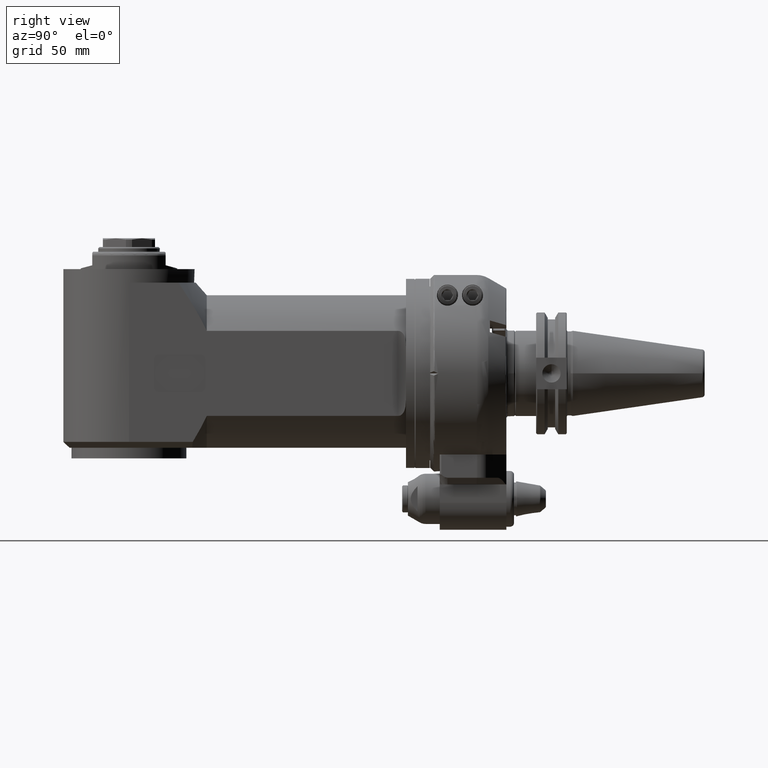
[diagram: clean part render]
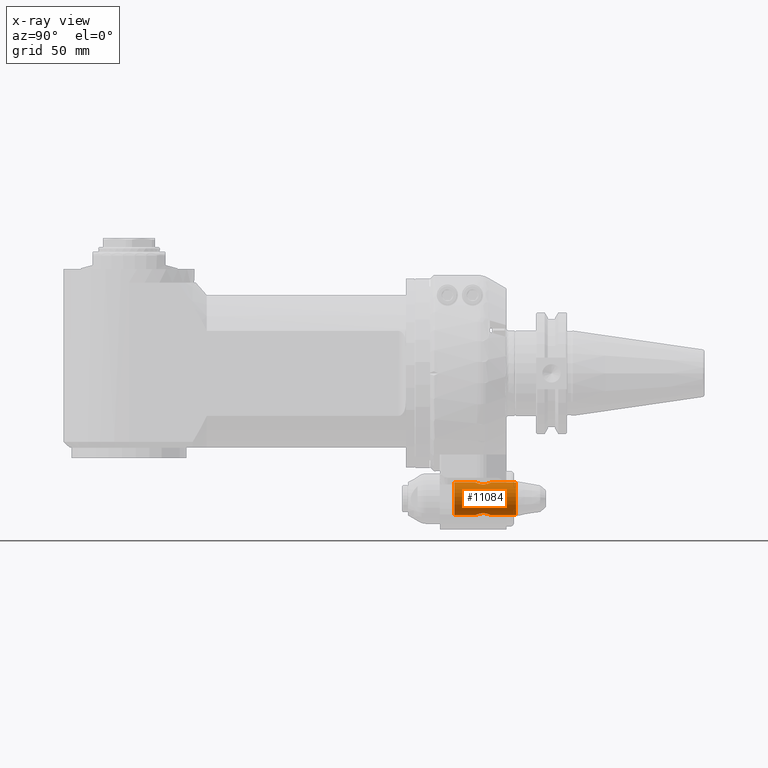
[diagram: x-ray — body ghosted, one internal face saturated and labeled with its STEP entity id]
A machine part, right view, then the same camera in x-ray: the body is ghosted and one INTERNAL B-rep face — a face not visible from any outside direction — is saturated and labeled: STEP entity #11084.
In plain terms, the highlighted cylindrical surface (bore or boss wall) has radius 8.5 mm, axis along (0, 1, 0).
Its self-contained STEP definition (entity closure, byte-faithful):
#393=FACE_BOUND('',#2374,.T.);
#596=B_SPLINE_CURVE_WITH_KNOTS('',3,(#19995,#19996,#19997,#19998,#19999,
#20000,#20001,#20002,#20003,#20004),.UNSPECIFIED.,.F.,.F.,(4,2,2,2,4),(0.613430912820706,
0.766629647538084,0.919828382255461,1.07334510394844,1.22686182564141),
 .UNSPECIFIED.);
#597=B_SPLINE_CURVE_WITH_KNOTS('',3,(#20006,#20007,#20008,#20009,#20010,
#20011,#20012,#20013,#20014,#20015),.UNSPECIFIED.,.F.,.F.,(4,2,2,2,4),(-1.22686182564141,
-1.07334510394844,-0.919828382255462,-0.766629647538084,-0.613430912820706),
 .UNSPECIFIED.);
#598=B_SPLINE_CURVE_WITH_KNOTS('',3,(#20017,#20018,#20019,#20020,#20021,
#20022,#20023,#20024,#20025,#20026,#20027,#20028,#20029,#20030,#20031,#20032,
#20033,#20034,#20035),.UNSPECIFIED.,.F.,.F.,(4,2,2,2,3,2,2,2,4),(-0.613430912820706,
-0.460232178103329,-0.307033443385951,-0.153516721692976,0.,0.153516721692975,
0.307033443385951,0.460232178103329,0.613430912820706),.UNSPECIFIED.);
#599=B_SPLINE_CURVE_WITH_KNOTS('',3,(#20037,#20038,#20039,#20040,#20041,
#20042,#20043,#20044,#20045,#20046,#20047,#20048,#20049,#20050,#20051,#20052,
#20053,#20054,#20055,#20056,#20057,#20058,#20059,#20060,#20061,#20062,#20063,
#20064,#20065,#20066,#20067,#20068,#20069,#20070),.UNSPECIFIED.,.T.,.F.,
(4,2,2,2,2,2,2,2,2,2,2,2,2,2,2,2,4),(-2.45372365128283,-2.30020692958985,
-2.14669020789687,-1.9934914731795,-1.84029273846212,-1.68709400374474,
-1.53389526902736,-1.38037854733439,-1.22686182564141,-1.07334510394844,
-0.919828382255461,-0.766629647538084,-0.613430912820706,-0.460232178103328,
-0.307033443385951,-0.153516721692975,0.),.UNSPECIFIED.);
#1062=CYLINDRICAL_SURFACE('',#12747,8.5);
#1618=FACE_OUTER_BOUND('',#2373,.T.);
#2373=EDGE_LOOP('',(#9711,#9712,#9713,#9714,#9715,#9716,#9717,#9718,#9719));
#2374=EDGE_LOOP('',(#9720));
#3086=CIRCLE('',#12746,8.5);
#3087=CIRCLE('',#12748,8.5);
#3785=LINE('',#19993,#4488);
#3786=LINE('',#20016,#4489);
#4488=VECTOR('',#15768,8.5);
#4489=VECTOR('',#15769,8.5);
#5441=VERTEX_POINT('',#19987);
#5442=VERTEX_POINT('',#19990);
#5443=VERTEX_POINT('',#19992);
#5444=VERTEX_POINT('',#19994);
#5445=VERTEX_POINT('',#20005);
#5446=VERTEX_POINT('',#20036);
#6903=EDGE_CURVE('',#5441,#5441,#3086,.T.);
#6904=EDGE_CURVE('',#5442,#5442,#3087,.T.);
#6905=EDGE_CURVE('',#5442,#5443,#3785,.T.);
#6906=EDGE_CURVE('',#5444,#5443,#596,.F.);
#6907=EDGE_CURVE('',#5445,#5444,#597,.F.);
#6908=EDGE_CURVE('',#5445,#5441,#3786,.T.);
#6909=EDGE_CURVE('',#5443,#5445,#598,.F.);
#6910=EDGE_CURVE('',#5446,#5446,#599,.F.);
#9711=ORIENTED_EDGE('',*,*,#6904,.F.);
#9712=ORIENTED_EDGE('',*,*,#6905,.T.);
#9713=ORIENTED_EDGE('',*,*,#6906,.F.);
#9714=ORIENTED_EDGE('',*,*,#6907,.F.);
#9715=ORIENTED_EDGE('',*,*,#6908,.T.);
#9716=ORIENTED_EDGE('',*,*,#6903,.F.);
#9717=ORIENTED_EDGE('',*,*,#6908,.F.);
#9718=ORIENTED_EDGE('',*,*,#6909,.F.);
#9719=ORIENTED_EDGE('',*,*,#6905,.F.);
#9720=ORIENTED_EDGE('',*,*,#6910,.F.);
#11084=ADVANCED_FACE('',(#1618,#393),#1062,.T.);
#12746=AXIS2_PLACEMENT_3D('',#19988,#15762,#15763);
#12747=AXIS2_PLACEMENT_3D('',#19989,#15764,#15765);
#12748=AXIS2_PLACEMENT_3D('',#19991,#15766,#15767);
#15762=DIRECTION('center_axis',(1.,0.,0.));
#15763=DIRECTION('ref_axis',(0.,1.,0.));
#15764=DIRECTION('center_axis',(-1.,0.,0.));
#15765=DIRECTION('ref_axis',(0.,1.,0.));
#15766=DIRECTION('center_axis',(-1.,0.,0.));
#15767=DIRECTION('ref_axis',(0.,-1.,0.));
#15768=DIRECTION('',(1.,0.,0.));
#15769=DIRECTION('',(1.,0.,0.));
#19987=CARTESIAN_POINT('',(-31.75,56.5,1.04094977927525E-15));
#19988=CARTESIAN_POINT('Origin',(-31.75,65.,0.));
#19989=CARTESIAN_POINT('Origin',(-16.2499976,65.,0.));
#19990=CARTESIAN_POINT('',(-63.75,56.5,1.04094977927525E-15));
#19991=CARTESIAN_POINT('Origin',(-63.75,65.,0.));
#19992=CARTESIAN_POINT('',(-50.75,56.5,5.89863828676697E-16));
#19993=CARTESIAN_POINT('',(-16.2499976,56.5,1.04094977927525E-15));
#19994=CARTESIAN_POINT('',(-46.75,57.5,4.));
#19995=CARTESIAN_POINT('Ctrl Pts',(-50.75,56.5,1.38777878078145E-16));
#19996=CARTESIAN_POINT('Ctrl Pts',(-50.75,56.5,0.510662449057925));
#19997=CARTESIAN_POINT('Ctrl Pts',(-50.6463150371533,56.550307430602,1.05009892728331));
#19998=CARTESIAN_POINT('Ctrl Pts',(-50.2355009215929,56.7317020547219,2.03353418176194));
#19999=CARTESIAN_POINT('Ctrl Pts',(-49.9287787722121,56.8607634394313,2.47807547728031));
#20000=CARTESIAN_POINT('Ctrl Pts',(-49.2273482698332,57.1082736246508,3.17950597965918));
#20001=CARTESIAN_POINT('Ctrl Pts',(-48.7830622122315,57.2442369519195,3.48568850685861));
#20002=CARTESIAN_POINT('Ctrl Pts',(-47.8006991349841,57.4420572899479,3.89607388117928));
#20003=CARTESIAN_POINT('Ctrl Pts',(-47.2617224056432,57.5,4.));
#20004=CARTESIAN_POINT('Ctrl Pts',(-46.75,57.5,4.));
#20005=CARTESIAN_POINT('',(-42.75,56.5,-1.73414500753098E-16));
#20006=CARTESIAN_POINT('Ctrl Pts',(-46.75,57.5,4.));
#20007=CARTESIAN_POINT('Ctrl Pts',(-46.2382775943568,57.5,4.));
#20008=CARTESIAN_POINT('Ctrl Pts',(-45.6993008650159,57.4420572899479,3.89607388117928));
#20009=CARTESIAN_POINT('Ctrl Pts',(-44.7169377877685,57.2442369519195,3.4856885068586));
#20010=CARTESIAN_POINT('Ctrl Pts',(-44.2726517301668,57.1082736246508,3.17950597965918));
#20011=CARTESIAN_POINT('Ctrl Pts',(-43.5712212277879,56.8607634394313,2.47807547728031));
#20012=CARTESIAN_POINT('Ctrl Pts',(-43.2644990784071,56.7317020547219,2.03353418176193));
#20013=CARTESIAN_POINT('Ctrl Pts',(-42.8536849628466,56.550307430602,1.05009892728331));
#20014=CARTESIAN_POINT('Ctrl Pts',(-42.75,56.5,0.510662449057924));
#20015=CARTESIAN_POINT('Ctrl Pts',(-42.75,56.5,-1.38777878078145E-15));
#20016=CARTESIAN_POINT('',(-16.2499976,56.5,1.04094977927525E-15));
#20017=CARTESIAN_POINT('Ctrl Pts',(-42.75,56.5,9.71445146547012E-16));
#20018=CARTESIAN_POINT('Ctrl Pts',(-42.75,56.5,-0.510662449057924));
#20019=CARTESIAN_POINT('Ctrl Pts',(-42.8536849628466,56.550307430602,-1.05009892728331));
#20020=CARTESIAN_POINT('Ctrl Pts',(-43.2644990784071,56.7317020547219,-2.03353418176193));
#20021=CARTESIAN_POINT('Ctrl Pts',(-43.5712212277879,56.8607634394313,-2.4780754772803));
#20022=CARTESIAN_POINT('Ctrl Pts',(-44.2726517301668,57.1082736246508,-3.17950597965918));
#20023=CARTESIAN_POINT('Ctrl Pts',(-44.7169377877685,57.2442369519195,-3.48568850685861));
#20024=CARTESIAN_POINT('Ctrl Pts',(-45.6993008650159,57.4420572899479,-3.89607388117928));
#20025=CARTESIAN_POINT('Ctrl Pts',(-46.2382775943567,57.5,-4.));
#20026=CARTESIAN_POINT('Ctrl Pts',(-46.75,57.5,-4.));
#20027=CARTESIAN_POINT('Ctrl Pts',(-47.2617224056432,57.5,-4.));
#20028=CARTESIAN_POINT('Ctrl Pts',(-47.8006991349841,57.4420572899479,-3.89607388117927));
#20029=CARTESIAN_POINT('Ctrl Pts',(-48.7830622122315,57.2442369519195,-3.4856885068586));
#20030=CARTESIAN_POINT('Ctrl Pts',(-49.2273482698332,57.1082736246508,-3.17950597965918));
#20031=CARTESIAN_POINT('Ctrl Pts',(-49.9287787722121,56.8607634394313,-2.47807547728031));
#20032=CARTESIAN_POINT('Ctrl Pts',(-50.2355009215929,56.7317020547219,-2.03353418176194));
#20033=CARTESIAN_POINT('Ctrl Pts',(-50.6463150371533,56.550307430602,-1.05009892728332));
#20034=CARTESIAN_POINT('Ctrl Pts',(-50.75,56.5,-0.510662449057925));
#20035=CARTESIAN_POINT('Ctrl Pts',(-50.75,56.5,9.71445146547012E-16));
#20036=CARTESIAN_POINT('',(-46.75,72.5,4.));
#20037=CARTESIAN_POINT('Ctrl Pts',(-46.75,72.5,-4.));
#20038=CARTESIAN_POINT('Ctrl Pts',(-46.2382775943567,72.5,-4.));
#20039=CARTESIAN_POINT('Ctrl Pts',(-45.6993008650159,72.5579427100521,-3.89607388117928));
#20040=CARTESIAN_POINT('Ctrl Pts',(-44.7169377877685,72.7557630480805,-3.48568850685861));
#20041=CARTESIAN_POINT('Ctrl Pts',(-44.2726517301668,72.8917263753492,-3.17950597965918));
#20042=CARTESIAN_POINT('Ctrl Pts',(-43.5712212277879,73.1392365605687,-2.4780754772803));
#20043=CARTESIAN_POINT('Ctrl Pts',(-43.2644990784071,73.2682979452781,-2.03353418176193));
#20044=CARTESIAN_POINT('Ctrl Pts',(-42.8536849628466,73.449692569398,-1.05009892728331));
#20045=CARTESIAN_POINT('Ctrl Pts',(-42.75,73.5,-0.510662449057925));
#20046=CARTESIAN_POINT('Ctrl Pts',(-42.75,73.5,0.510662449057925));
#20047=CARTESIAN_POINT('Ctrl Pts',(-42.8536849628466,73.449692569398,1.05009892728331));
#20048=CARTESIAN_POINT('Ctrl Pts',(-43.2644990784071,73.2682979452781,2.03353418176193));
#20049=CARTESIAN_POINT('Ctrl Pts',(-43.5712212277879,73.1392365605687,2.47807547728031));
#20050=CARTESIAN_POINT('Ctrl Pts',(-44.2726517301668,72.8917263753492,3.17950597965918));
#20051=CARTESIAN_POINT('Ctrl Pts',(-44.7169377877685,72.7557630480805,3.48568850685861));
#20052=CARTESIAN_POINT('Ctrl Pts',(-45.6993008650159,72.5579427100521,3.89607388117928));
#20053=CARTESIAN_POINT('Ctrl Pts',(-46.2382775943568,72.5,4.));
#20054=CARTESIAN_POINT('Ctrl Pts',(-47.2617224056432,72.5,4.));
#20055=CARTESIAN_POINT('Ctrl Pts',(-47.8006991349841,72.5579427100521,3.89607388117928));
#20056=CARTESIAN_POINT('Ctrl Pts',(-48.7830622122315,72.7557630480805,3.48568850685861));
#20057=CARTESIAN_POINT('Ctrl Pts',(-49.2273482698332,72.8917263753492,3.17950597965918));
#20058=CARTESIAN_POINT('Ctrl Pts',(-49.9287787722121,73.1392365605687,2.47807547728031));
#20059=CARTESIAN_POINT('Ctrl Pts',(-50.2355009215929,73.2682979452781,2.03353418176194));
#20060=CARTESIAN_POINT('Ctrl Pts',(-50.6463150371533,73.449692569398,1.05009892728332));
#20061=CARTESIAN_POINT('Ctrl Pts',(-50.75,73.5,0.510662449057926));
#20062=CARTESIAN_POINT('Ctrl Pts',(-50.75,73.5,-0.510662449057925));
#20063=CARTESIAN_POINT('Ctrl Pts',(-50.6463150371533,73.449692569398,-1.05009892728332));
#20064=CARTESIAN_POINT('Ctrl Pts',(-50.2355009215929,73.2682979452781,-2.03353418176194));
#20065=CARTESIAN_POINT('Ctrl Pts',(-49.9287787722121,73.1392365605687,-2.47807547728031));
#20066=CARTESIAN_POINT('Ctrl Pts',(-49.2273482698332,72.8917263753492,-3.17950597965918));
#20067=CARTESIAN_POINT('Ctrl Pts',(-48.7830622122315,72.7557630480805,-3.4856885068586));
#20068=CARTESIAN_POINT('Ctrl Pts',(-47.8006991349841,72.5579427100521,-3.89607388117927));
#20069=CARTESIAN_POINT('Ctrl Pts',(-47.2617224056432,72.5,-4.));
#20070=CARTESIAN_POINT('Ctrl Pts',(-46.75,72.5,-4.));